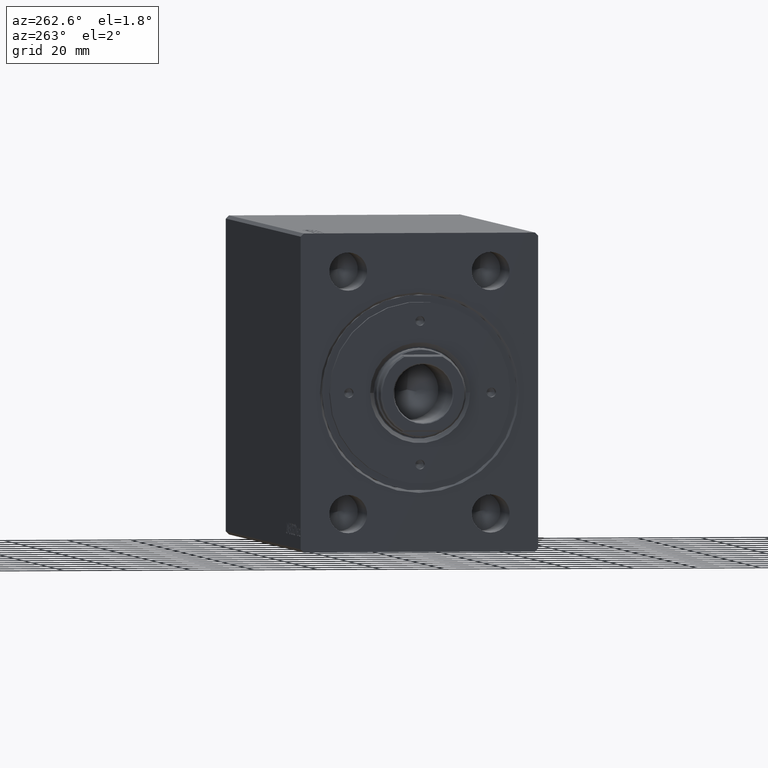
[diagram: clean part render]
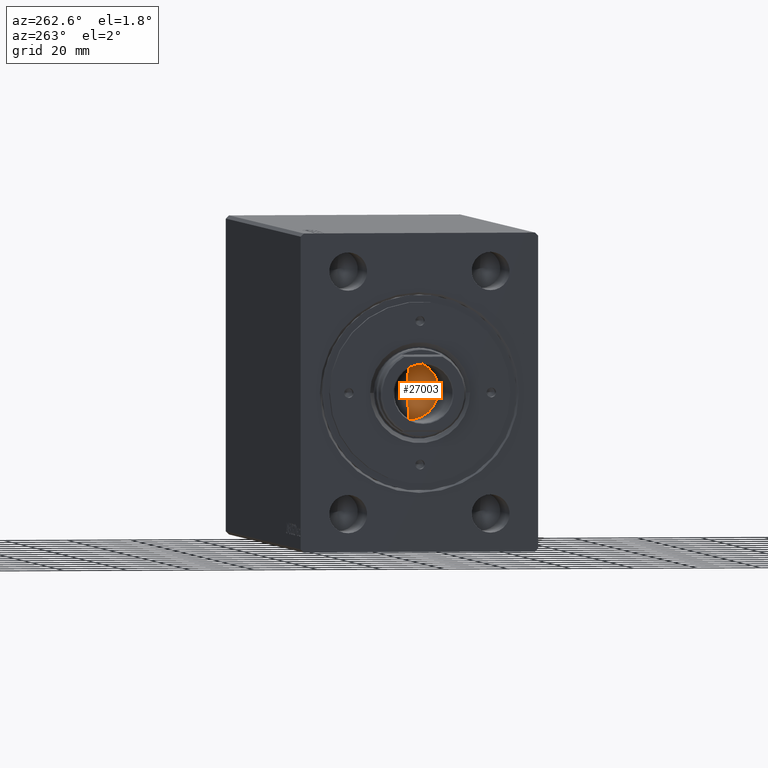
[diagram: same view with one face highlighted and labeled with its STEP entity id]
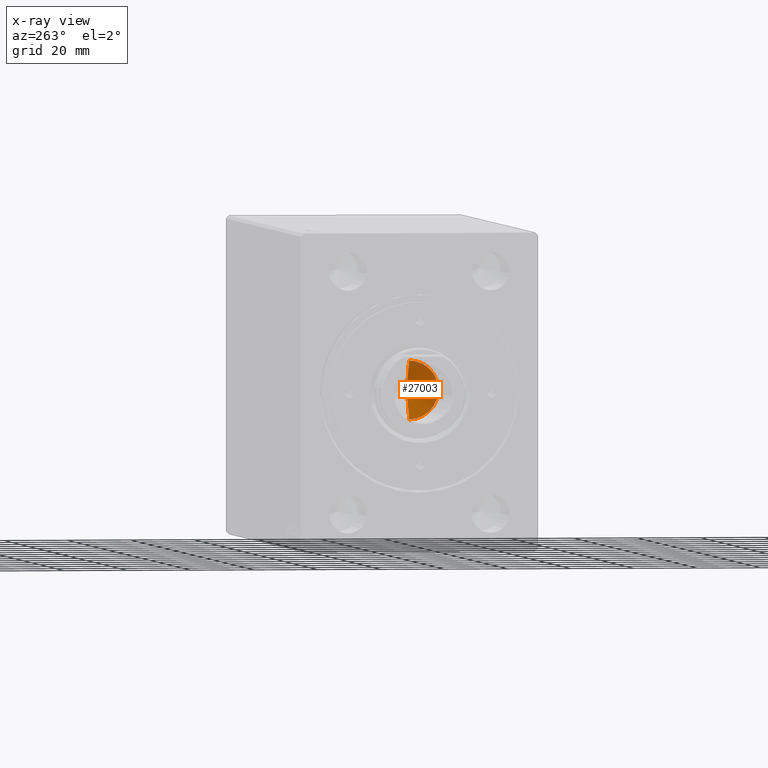
[diagram: x-ray of the same camera — body ghosted, the highlighted face saturated]
A machine part, auxiliary view. The second image highlights one B-rep face of the part: STEP entity #27003.
The next image is the same camera in x-ray: the body ghosted, the highlighted face saturated — about 4% of this face is hidden behind the body in this view.
In plain terms, the highlighted conical surface has half-angle 59 deg.
Its self-contained STEP definition (entity closure, byte-faithful):
#705 = CARTESIAN_POINT ( 'NONE',  ( 0.000000000000000000, 0.000000000000000000, 139.2000000000000171 ) ) ;
#1818 = DIRECTION ( 'NONE',  ( 0.8571673007021122226, 0.000000000000000000, 0.5150380749100541555 ) ) ;
#2747 = EDGE_CURVE ( 'NONE', #7799, #39639, #21455, .T. ) ;
#4980 = CARTESIAN_POINT ( 'NONE',  ( 0.000000000000000000, 0.000000000000000000, 139.2000000000000171 ) ) ;
#5288 = VERTEX_POINT ( 'NONE', #24157 ) ;
#6146 = CARTESIAN_POINT ( 'NONE',  ( -9.249999999999994671, 1.132798289211300909E-15, 139.2000000000000171 ) ) ;
#7799 = VERTEX_POINT ( 'NONE', #16999 ) ;
#7816 = DIRECTION ( 'NONE',  ( 1.000000000000000000, 0.000000000000000000, 0.000000000000000000 ) ) ;
#7965 = AXIS2_PLACEMENT_3D ( 'NONE', #4980, #38787, #11653 ) ;
#9167 = CARTESIAN_POINT ( 'NONE',  ( 9.249999999999994671, 0.000000000000000000, 139.2000000000000171 ) ) ;
#9749 = CONICAL_SURFACE ( 'NONE', #25373, 9.249999999999994671, 1.029744258676654534 ) ;
#11653 = DIRECTION ( 'NONE',  ( 1.000000000000000000, 0.000000000000000000, 0.000000000000000000 ) ) ;
#12030 = VECTOR ( 'NONE', #1818, 1000.000000000000114 ) ;
#16999 = CARTESIAN_POINT ( 'NONE',  ( -9.249999999999994671, 1.132798289211300909E-15, 139.2000000000000171 ) ) ;
#17848 = CARTESIAN_POINT ( 'NONE',  ( 9.249999999999994671, 0.000000000000000000, 139.2000000000000171 ) ) ;
#21455 = CIRCLE ( 'NONE', #7965, 9.249999999999994671 ) ;
#22409 = DIRECTION ( 'NONE',  ( -0.000000000000000000, -0.000000000000000000, 1.000000000000000000 ) ) ;
#22831 = LINE ( 'NONE', #6146, #26924 ) ;
#24157 = CARTESIAN_POINT ( 'NONE',  ( -1.046994375366439223E-14, 0.000000000000000000, 133.6420392739950955 ) ) ;
#24492 = FACE_OUTER_BOUND ( 'NONE', #29755, .T. ) ;
#25373 = AXIS2_PLACEMENT_3D ( 'NONE', #705, #22409, #7816 ) ;
#26924 = VECTOR ( 'NONE', #39096, 1000.000000000000114 ) ;
#27003 = ADVANCED_FACE ( 'NONE', ( #24492 ), #9749, .F. ) ;
#29755 = EDGE_LOOP ( 'NONE', ( #40709, #36862, #33460 ) ) ;
#32976 = EDGE_CURVE ( 'NONE', #5288, #7799, #22831, .T. ) ;
#33460 = ORIENTED_EDGE ( 'NONE', *, *, #2747, .T. ) ;
#34018 = EDGE_CURVE ( 'NONE', #5288, #39639, #41653, .T. ) ;
#36862 = ORIENTED_EDGE ( 'NONE', *, *, #32976, .T. ) ;
#38787 = DIRECTION ( 'NONE',  ( -0.000000000000000000, -0.000000000000000000, 1.000000000000000000 ) ) ;
#39096 = DIRECTION ( 'NONE',  ( -0.8571673007021122226, 1.049727191138618696E-16, 0.5150380749100541555 ) ) ;
#39639 = VERTEX_POINT ( 'NONE', #9167 ) ;
#40709 = ORIENTED_EDGE ( 'NONE', *, *, #34018, .F. ) ;
#41653 = LINE ( 'NONE', #17848, #12030 ) ;